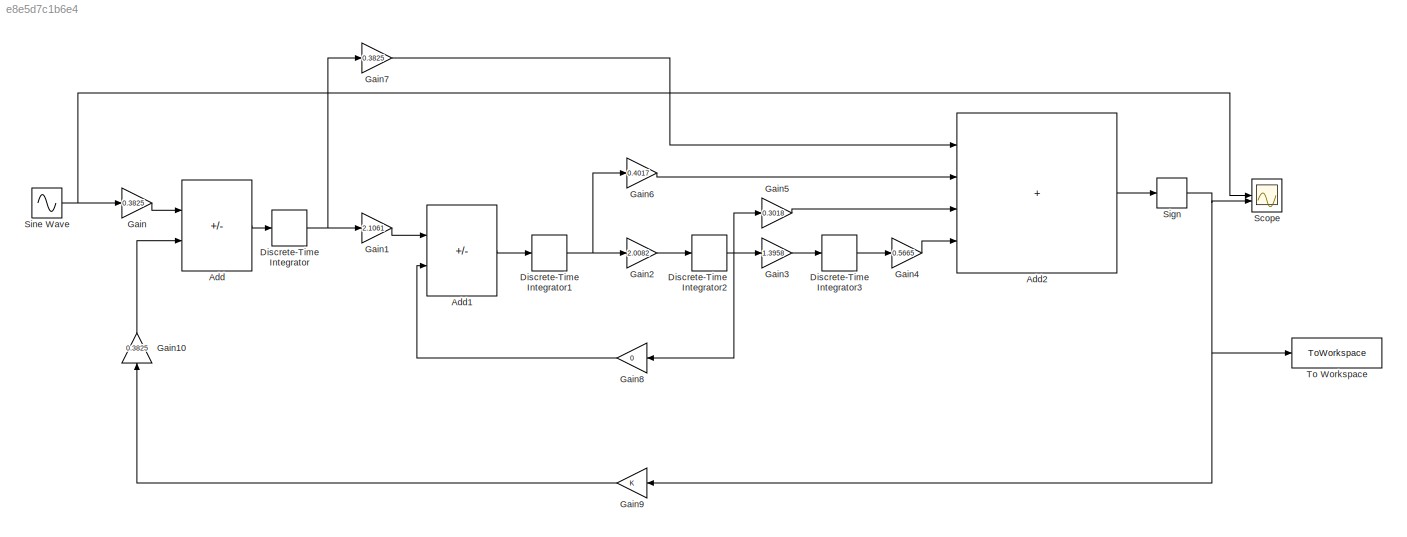
MODEL slx_e8e5d7c1b6e4
KIND model
CONFIG AbsTol = auto
CONFIG EnableMultiTasking = off
CONFIG FixedStep = auto
CONFIG MaxStep = auto
CONFIG MinStep = auto
CONFIG RelTol = 1e-3
CONFIG SampleTimeConstraint = Unconstrained
CONFIG SolverName = FixedStepDiscrete
CONFIG StartTime = 0.0
CONFIG StopTime = 4.608
BLOCK [Sum] Add
  IconShape = rectangular
  Inputs = +-
BLOCK [Sum] Add1
  IconShape = rectangular
  Inputs = +-
BLOCK [Sum] Add2
  IconShape = rectangular
  Inputs = ++++
BLOCK [DiscreteIntegrator] Discrete-Time Integrator
  ICPrevOutput = DiscIntNeverNeededParam
  ICPrevScaledInput = DiscIntNeverNeededParam
  InitialConditionSetting = Auto
  LimitOutput = on
  LowerSaturationLimit = -1.8
  SampleTime = 1/8.192e6
  UpperSaturationLimit = 1.8
BLOCK [DiscreteIntegrator] Discrete-Time Integrator1
  ICPrevOutput = DiscIntNeverNeededParam
  ICPrevScaledInput = DiscIntNeverNeededParam
  InitialConditionSetting = Auto
  LimitOutput = on
  LowerSaturationLimit = -1.8
  SampleTime = 1/8.192e6
  UpperSaturationLimit = 1.8
BLOCK [DiscreteIntegrator] Discrete-Time Integrator2
  ICPrevOutput = DiscIntNeverNeededParam
  ICPrevScaledInput = DiscIntNeverNeededParam
  InitialConditionSetting = Auto
  LimitOutput = on
  LowerSaturationLimit = -1.8
  SampleTime = 1/8.192e6
  UpperSaturationLimit = 1.8
BLOCK [DiscreteIntegrator] Discrete-Time Integrator3
  ICPrevOutput = DiscIntNeverNeededParam
  ICPrevScaledInput = DiscIntNeverNeededParam
  InitialConditionSetting = Auto
  LimitOutput = on
  LowerSaturationLimit = -1.8
  SampleTime = 1/8.192e6
  UpperSaturationLimit = 1.8
BLOCK [Gain] Gain
  Gain = 0.3825
BLOCK [Gain] Gain1
  Gain = 2.1061
BLOCK [Gain] Gain10
  Gain = 0.3825
  NameLocation = right
BLOCK [Gain] Gain2
  Gain = 2.0082
BLOCK [Gain] Gain3
  Gain = 1.3958
BLOCK [Gain] Gain4
  Gain = 0.5665
BLOCK [Gain] Gain5
  Gain = 0.3018
BLOCK [Gain] Gain6
  Gain = 0.4017
BLOCK [Gain] Gain7
  Gain = 0.3825
BLOCK [Gain] Gain8
  Gain = 0
  NameLocation = top
BLOCK [Gain] Gain9
  NameLocation = top
BLOCK [Scope] Scope
  Floating = off
  NumInputPorts = 2
  ScopeSpecificationString = Simulink.scopes.TimeScopeBlockCfg('CurrentConfiguration', extmgr.ConfigurationSet(extmgr.Configuration('Core','General UI',true),extmgr.Configuration('Core','Source UI',true),extmgr.Configuration('Sources','WiredSimulink',true),extmgr.Configuration('Visuals','Time Domain',true,'SerializedDisplays',{struct('MinYLimReal','-1.25','MaxYLimReal','1.25','YLabelReal','','MinYLimMag','0.00000','MaxYLimMag...<+2240ch>
BLOCK [Signum] Sign
BLOCK [Sin] Sine Wave
  Amplitude = 0.9
  Frequency = 4712.39
  SampleTime = 1/8.192e6
  Samples = 163660
BLOCK [ToWorkspace] To Workspace
  FixptAsFi = on
  MaxDataPoints = inf
  SampleTime = -1
  VariableName = dsm_out
LINE Add1:1 -> Discrete-Time Integrator1:1
LINE Add2:1 -> Sign:1
LINE Add:1 -> Discrete-Time Integrator:1
NET Discrete-Time Integrator1:1 -> Gain2:1, Gain6:1
NET Discrete-Time Integrator2:1 -> Gain3:1, Gain5:1, Gain8:1
LINE Discrete-Time Integrator3:1 -> Gain4:1
NET Discrete-Time Integrator:1 -> Gain1:1, Gain7:1
LINE Gain10:1 -> Add:2
LINE Gain1:1 -> Add1:1
LINE Gain2:1 -> Discrete-Time Integrator2:1
LINE Gain3:1 -> Discrete-Time Integrator3:1
LINE Gain4:1 -> Add2:4
LINE Gain5:1 -> Add2:3
LINE Gain6:1 -> Add2:2
LINE Gain7:1 -> Add2:1
LINE Gain8:1 -> Add1:2
LINE Gain9:1 -> Gain10:1
LINE Gain:1 -> Add:1
NET Sign:1 -> Gain9:1, Scope:2, To Workspace:1
NET Sine Wave:1 -> Gain:1, Scope:1
note: NET lines group one-source signal fan-out (src -> all destinations, sorted); 1:1 wires keep LINE
